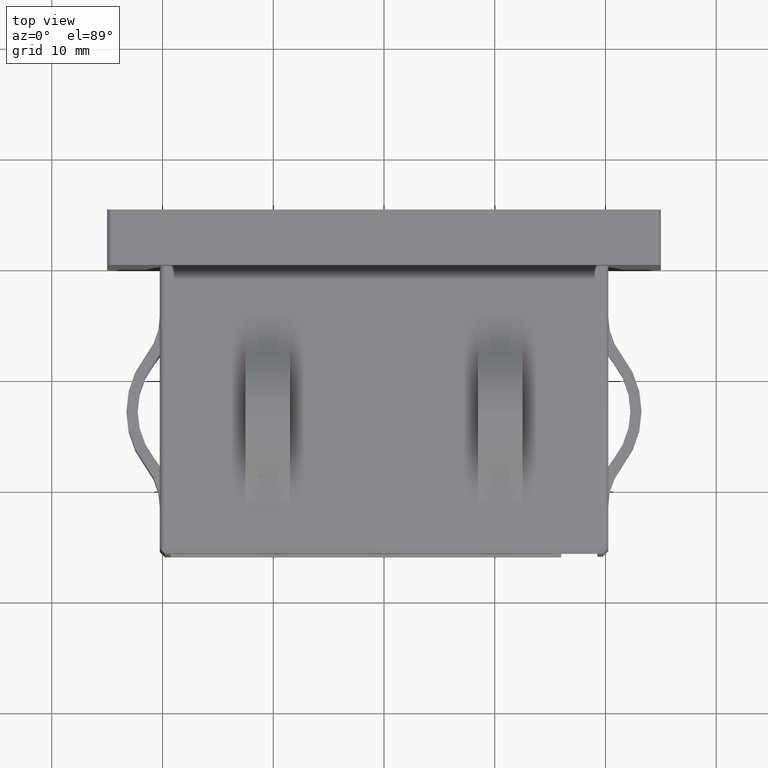
[diagram: clean part render]
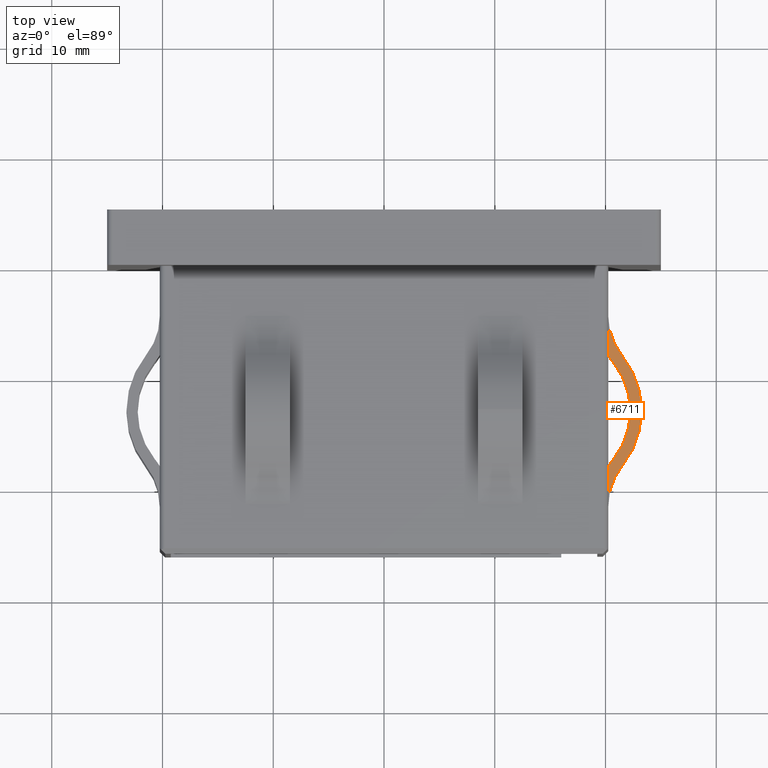
[diagram: same view with one face highlighted and labeled with its STEP entity id]
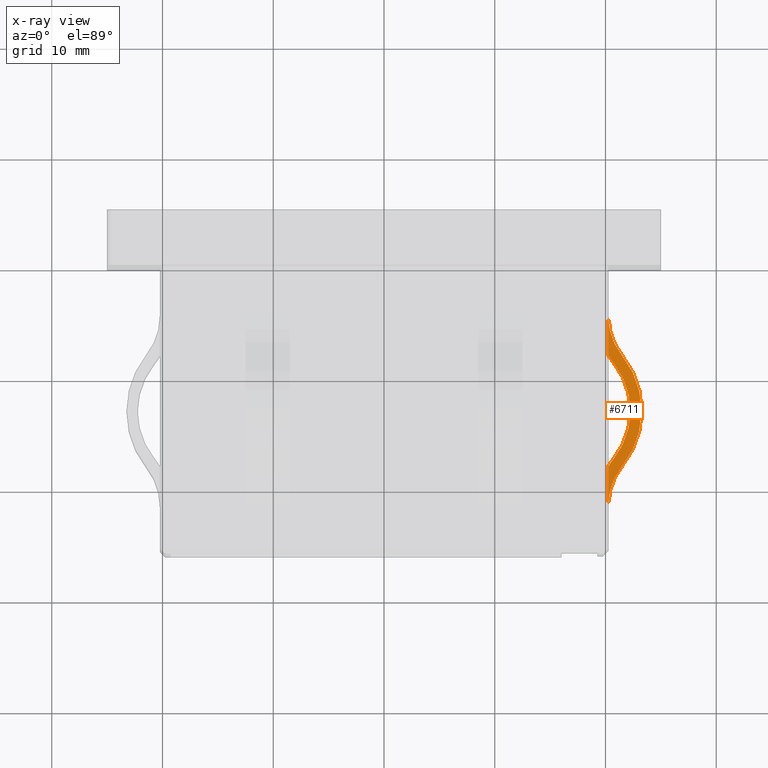
[diagram: x-ray of the same camera — body ghosted, the highlighted face saturated]
A machine part, top view. The second image highlights one B-rep face of the part: STEP entity #6711.
The next image is the same camera in x-ray: the body ghosted, the highlighted face saturated — about 0% of this face is hidden behind the body in this view.
In plain terms, the highlighted planar face has unit normal (0, 0, -1).
Its self-contained STEP definition (entity closure, byte-faithful):
#164 = CARTESIAN_POINT ( 'NONE',  ( 25.82598022999519600, -4.500000077077854300, 4.124999999999989300 ) ) ;
#868 = VERTEX_POINT ( 'NONE', #8150 ) ;
#984 = CARTESIAN_POINT ( 'NONE',  ( 20.24999999999999600, -7.985966293206506500, 4.124999999999989300 ) ) ;
#1832 = AXIS2_PLACEMENT_3D ( 'NONE', #16359, #10734, #14982 ) ;
#1926 = DIRECTION ( 'NONE',  ( -0.0000000000000000000, -0.0000000000000000000, 1.000000000000000000 ) ) ;
#2068 = AXIS2_PLACEMENT_3D ( 'NONE', #5748, #7157, #17013 ) ;
#2189 = VERTEX_POINT ( 'NONE', #984 ) ;
#2353 = LINE ( 'NONE', #5948, #16456 ) ;
#2616 = CARTESIAN_POINT ( 'NONE',  ( 23.24999999999579000, -13.00000000000000200, 4.124999999999989300 ) ) ;
#2991 = DIRECTION ( 'NONE',  ( -1.000000000000000000, 1.742196143248408400E-015, 0.0000000000000000000 ) ) ;
#3225 = AXIS2_PLACEMENT_3D ( 'NONE', #10413, #1926, #15825 ) ;
#3338 = DIRECTION ( 'NONE',  ( -0.0000000000000000000, -0.0000000000000000000, 1.000000000000000000 ) ) ;
#3582 = CARTESIAN_POINT ( 'NONE',  ( 0.0000000000000000000, 0.0000000000000000000, 4.124999999999989300 ) ) ;
#3665 = ORIENTED_EDGE ( 'NONE', *, *, #8296, .T. ) ;
#3843 = ORIENTED_EDGE ( 'NONE', *, *, #5359, .T. ) ;
#4460 = DIRECTION ( 'NONE',  ( -0.0000000000000000000, -0.0000000000000000000, 1.000000000000000000 ) ) ;
#4584 = DIRECTION ( 'NONE',  ( -0.0000000000000000000, -0.0000000000000000000, 1.000000000000000000 ) ) ;
#4641 = CARTESIAN_POINT ( 'NONE',  ( 20.24999999999999600, -18.01403370679348700, 4.124999999999989300 ) ) ;
#5359 = EDGE_CURVE ( 'NONE', #6651, #2189, #9561, .T. ) ;
#5748 = CARTESIAN_POINT ( 'NONE',  ( 15.28431378171576700, -13.00000000000000200, 4.124999999999989300 ) ) ;
#5948 = CARTESIAN_POINT ( 'NONE',  ( 20.24999999999999600, -26.00000000000000000, 4.124999999999989300 ) ) ;
#6058 = AXIS2_PLACEMENT_3D ( 'NONE', #11834, #3338, #6171 ) ;
#6171 = DIRECTION ( 'NONE',  ( -1.000000000000000000, 0.0000000000000000000, 0.0000000000000000000 ) ) ;
#6473 = DIRECTION ( 'NONE',  ( 0.0000000000000000000, 0.0000000000000000000, -1.000000000000000000 ) ) ;
#6552 = EDGE_CURVE ( 'NONE', #10440, #17921, #11481, .T. ) ;
#6553 = CARTESIAN_POINT ( 'NONE',  ( 20.70683256675489400, -17.37230768787978300, 4.124999999999989300 ) ) ;
#6651 = VERTEX_POINT ( 'NONE', #8882 ) ;
#6711 = ADVANCED_FACE ( 'NONE', ( #18078 ), #17564, .F. ) ;
#7157 = DIRECTION ( 'NONE',  ( -0.0000000000000000000, -0.0000000000000000000, 1.000000000000000000 ) ) ;
#7211 = ORIENTED_EDGE ( 'NONE', *, *, #10090, .T. ) ;
#8063 = AXIS2_PLACEMENT_3D ( 'NONE', #3582, #6473, #13303 ) ;
#8108 = EDGE_CURVE ( 'NONE', #6651, #17921, #14742, .T. ) ;
#8150 = CARTESIAN_POINT ( 'NONE',  ( 20.24999999999758800, -21.49999992292215000, 4.124999999999989300 ) ) ;
#8267 = ORIENTED_EDGE ( 'NONE', *, *, #8108, .F. ) ;
#8296 = EDGE_CURVE ( 'NONE', #10382, #17541, #16667, .T. ) ;
#8319 = CARTESIAN_POINT ( 'NONE',  ( 22.25000000000000000, -13.00000000000000200, 4.124999999999989300 ) ) ;
#8503 = DIRECTION ( 'NONE',  ( -0.0000000000000000000, -0.0000000000000000000, 1.000000000000000000 ) ) ;
#8568 = EDGE_CURVE ( 'NONE', #9271, #868, #12881, .T. ) ;
#8882 = CARTESIAN_POINT ( 'NONE',  ( 20.24999999999999600, -4.500000000000003600, 4.124999999999989300 ) ) ;
#8961 = VERTEX_POINT ( 'NONE', #10395 ) ;
#9113 = VECTOR ( 'NONE', #14914, 1000.000000000000000 ) ;
#9271 = VERTEX_POINT ( 'NONE', #9904 ) ;
#9561 = LINE ( 'NONE', #17684, #9113 ) ;
#9656 = CIRCLE ( 'NONE', #18120, 6.965686218284231400 ) ;
#9904 = CARTESIAN_POINT ( 'NONE',  ( 21.48529410164039500, -18.00000000000037700, 4.124999999999989300 ) ) ;
#10078 = DIRECTION ( 'NONE',  ( -1.000000000000000000, -9.232892973468178000E-016, 0.0000000000000000000 ) ) ;
#10090 = EDGE_CURVE ( 'NONE', #2189, #8961, #10232, .T. ) ;
#10232 = CIRCLE ( 'NONE', #16083, 6.575980229995191300 ) ;
#10382 = VERTEX_POINT ( 'NONE', #6553 ) ;
#10395 = CARTESIAN_POINT ( 'NONE',  ( 20.70683256675489400, -8.627692312120213800, 4.124999999999989300 ) ) ;
#10413 = CARTESIAN_POINT ( 'NONE',  ( 25.82598022999518900, -21.49999992292215400, 4.124999999999989300 ) ) ;
#10440 = VERTEX_POINT ( 'NONE', #2616 ) ;
#10734 = DIRECTION ( 'NONE',  ( -0.0000000000000000000, -0.0000000000000000000, 1.000000000000000000 ) ) ;
#11481 = CIRCLE ( 'NONE', #6058, 7.965686218280024100 ) ;
#11540 = CARTESIAN_POINT ( 'NONE',  ( 15.28431378171576700, -13.00000000000000200, 4.124999999999989300 ) ) ;
#11645 = CARTESIAN_POINT ( 'NONE',  ( 21.48529410164086400, -7.999999999999247700, 4.124999999999989300 ) ) ;
#11655 = ORIENTED_EDGE ( 'NONE', *, *, #17622, .T. ) ;
#11679 = EDGE_CURVE ( 'NONE', #10382, #16404, #17891, .T. ) ;
#11834 = CARTESIAN_POINT ( 'NONE',  ( 15.28431378171576700, -13.00000000000000200, 4.124999999999989300 ) ) ;
#12479 = CARTESIAN_POINT ( 'NONE',  ( 15.28431378171576700, -13.00000000000000200, 4.124999999999989300 ) ) ;
#12881 = CIRCLE ( 'NONE', #3225, 5.575980229998198600 ) ;
#13012 = CARTESIAN_POINT ( 'NONE',  ( 25.82598022999519600, -4.500000077077854300, 4.124999999999989300 ) ) ;
#13078 = ORIENTED_EDGE ( 'NONE', *, *, #16418, .F. ) ;
#13165 = ORIENTED_EDGE ( 'NONE', *, *, #8568, .F. ) ;
#13303 = DIRECTION ( 'NONE',  ( -1.000000000000000000, 0.0000000000000000000, -0.0000000000000000000 ) ) ;
#13355 = CIRCLE ( 'NONE', #16141, 7.965686218280024100 ) ;
#14487 = DIRECTION ( 'NONE',  ( 0.0000000000000000000, -1.000000000000000000, 0.0000000000000000000 ) ) ;
#14742 = CIRCLE ( 'NONE', #18204, 5.575980229998799100 ) ;
#14914 = DIRECTION ( 'NONE',  ( 0.0000000000000000000, -1.000000000000000000, 0.0000000000000000000 ) ) ;
#14982 = DIRECTION ( 'NONE',  ( -1.000000000000000000, 2.585210032571089400E-014, 0.0000000000000000000 ) ) ;
#15253 = DIRECTION ( 'NONE',  ( -1.000000000000000000, 0.0000000000000000000, 0.0000000000000000000 ) ) ;
#15790 = DIRECTION ( 'NONE',  ( -1.000000000000000000, 0.0000000000000000000, 0.0000000000000000000 ) ) ;
#15825 = DIRECTION ( 'NONE',  ( -1.000000000000000000, 6.222129220057752600E-016, 0.0000000000000000000 ) ) ;
#16083 = AXIS2_PLACEMENT_3D ( 'NONE', #164, #8503, #10078 ) ;
#16141 = AXIS2_PLACEMENT_3D ( 'NONE', #11540, #4584, #2991 ) ;
#16216 = EDGE_LOOP ( 'NONE', ( #8267, #3843, #7211, #13078, #16427, #3665, #11655, #13165, #16677, #17555 ) ) ;
#16359 = CARTESIAN_POINT ( 'NONE',  ( 25.82598022999518900, -21.49999992292215400, 4.124999999999989300 ) ) ;
#16404 = VERTEX_POINT ( 'NONE', #8319 ) ;
#16418 = EDGE_CURVE ( 'NONE', #16404, #8961, #9656, .T. ) ;
#16427 = ORIENTED_EDGE ( 'NONE', *, *, #11679, .F. ) ;
#16456 = VECTOR ( 'NONE', #14487, 1000.000000000000000 ) ;
#16667 = CIRCLE ( 'NONE', #1832, 6.575980229995191300 ) ;
#16677 = ORIENTED_EDGE ( 'NONE', *, *, #17428, .T. ) ;
#16875 = DIRECTION ( 'NONE',  ( -0.0000000000000000000, -0.0000000000000000000, 1.000000000000000000 ) ) ;
#17013 = DIRECTION ( 'NONE',  ( -1.000000000000000000, 0.0000000000000000000, 0.0000000000000000000 ) ) ;
#17428 = EDGE_CURVE ( 'NONE', #9271, #10440, #13355, .T. ) ;
#17541 = VERTEX_POINT ( 'NONE', #4641 ) ;
#17555 = ORIENTED_EDGE ( 'NONE', *, *, #6552, .T. ) ;
#17564 = PLANE ( 'NONE',  #8063 ) ;
#17622 = EDGE_CURVE ( 'NONE', #17541, #868, #2353, .T. ) ;
#17684 = CARTESIAN_POINT ( 'NONE',  ( 20.24999999999999600, -26.00000000000000000, 4.124999999999989300 ) ) ;
#17891 = CIRCLE ( 'NONE', #2068, 6.965686218284231400 ) ;
#17921 = VERTEX_POINT ( 'NONE', #11645 ) ;
#18078 = FACE_OUTER_BOUND ( 'NONE', #16216, .T. ) ;
#18120 = AXIS2_PLACEMENT_3D ( 'NONE', #12479, #16875, #15253 ) ;
#18204 = AXIS2_PLACEMENT_3D ( 'NONE', #13012, #4460, #15790 ) ;